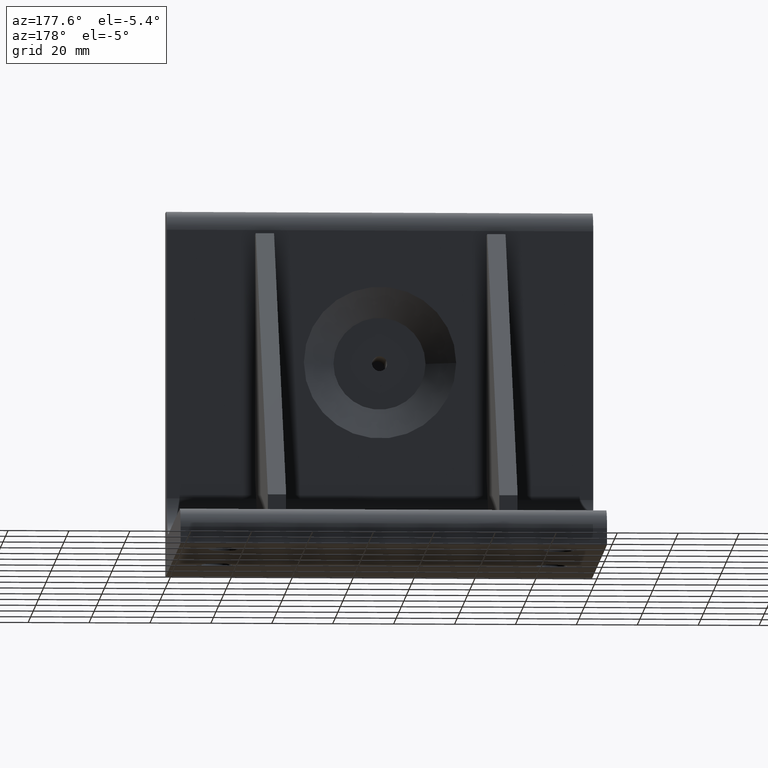
[diagram: clean part render]
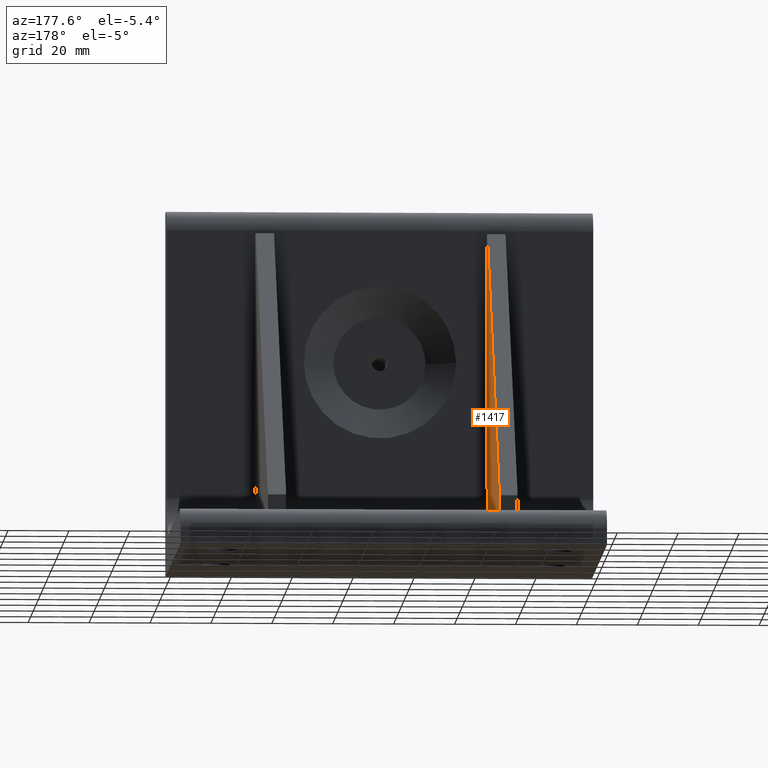
[diagram: same view with one face highlighted and labeled with its STEP entity id]
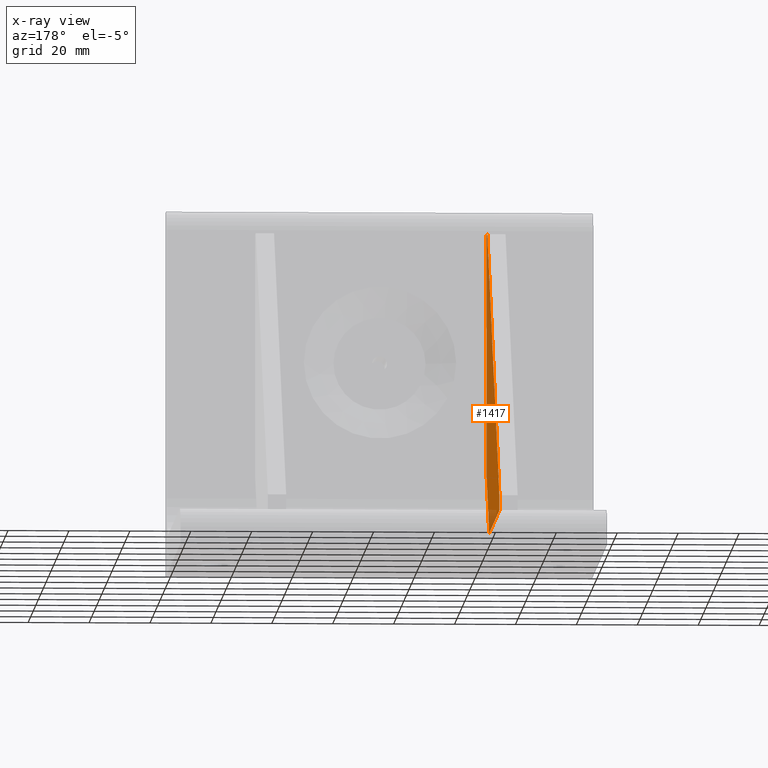
[diagram: x-ray of the same camera — body ghosted, the highlighted face saturated]
A machine part, auxiliary view. The second image highlights one B-rep face of the part: STEP entity #1417.
The next image is the same camera in x-ray: the body ghosted, the highlighted face saturated — about 6% of this face is hidden behind the body in this view.
In plain terms, the highlighted planar face has unit normal (-1, -0, 0).
Its self-contained STEP definition (entity closure, byte-faithful):
#194=FACE_OUTER_BOUND('',#297,.T.);
#297=EDGE_LOOP('',(#1220,#1221,#1222,#1223,#1224,#1225));
#399=LINE('',#2330,#529);
#422=LINE('',#2389,#552);
#423=LINE('',#2394,#553);
#424=LINE('',#2396,#554);
#425=LINE('',#2398,#555);
#426=LINE('',#2399,#556);
#529=VECTOR('',#1881,10.);
#552=VECTOR('',#1940,10.);
#553=VECTOR('',#1947,10.);
#554=VECTOR('',#1948,10.);
#555=VECTOR('',#1949,10.);
#556=VECTOR('',#1950,10.);
#677=VERTEX_POINT('',#2327);
#678=VERTEX_POINT('',#2329);
#693=VERTEX_POINT('',#2382);
#696=VERTEX_POINT('',#2387);
#698=VERTEX_POINT('',#2395);
#699=VERTEX_POINT('',#2397);
#847=EDGE_CURVE('',#677,#678,#399,.T.);
#877=EDGE_CURVE('',#696,#693,#422,.T.);
#879=EDGE_CURVE('',#696,#678,#423,.T.);
#880=EDGE_CURVE('',#677,#698,#424,.T.);
#881=EDGE_CURVE('',#698,#699,#425,.T.);
#882=EDGE_CURVE('',#699,#693,#426,.T.);
#1220=ORIENTED_EDGE('',*,*,#877,.F.);
#1221=ORIENTED_EDGE('',*,*,#879,.T.);
#1222=ORIENTED_EDGE('',*,*,#847,.F.);
#1223=ORIENTED_EDGE('',*,*,#880,.T.);
#1224=ORIENTED_EDGE('',*,*,#881,.T.);
#1225=ORIENTED_EDGE('',*,*,#882,.T.);
#1343=PLANE('',#1574);
#1417=ADVANCED_FACE('',(#194),#1343,.F.);
#1574=AXIS2_PLACEMENT_3D('',#2393,#1945,#1946);
#1881=DIRECTION('',(3.25452962490755E-46,-1.,-2.46716227694479E-16));
#1940=DIRECTION('',(8.16594296420187E-32,-2.87835598976892E-16,1.));
#1945=DIRECTION('center_axis',(-1.,-3.45599668927717E-46,8.16594296420187E-32));
#1946=DIRECTION('ref_axis',(8.16594296420187E-32,-4.69170109549033E-16,
1.));
#1947=DIRECTION('',(-5.77419364476974E-32,0.707106781186548,-0.707106781186547));
#1948=DIRECTION('',(8.16594296420187E-32,-4.69170109549033E-16,1.));
#1949=DIRECTION('',(5.77419364476974E-32,-0.707106781186548,0.707106781186547));
#1950=DIRECTION('',(1.62231219030736E-46,-1.,-2.24552694894928E-15));
#2327=CARTESIAN_POINT('',(35.,112.,12.));
#2329=CARTESIAN_POINT('',(35.,32.1471862576143,12.));
#2330=CARTESIAN_POINT('',(35.,31.0197260854705,12.));
#2382=CARTESIAN_POINT('',(35.,11.9999999999997,112.));
#2387=CARTESIAN_POINT('',(35.,12.,32.1471862576143));
#2389=CARTESIAN_POINT('',(35.,12.,85.0197260854706));
#2393=CARTESIAN_POINT('Origin',(35.,50.0394521709411,50.0394521709413));
#2394=CARTESIAN_POINT('',(35.,12.,32.1471862576143));
#2395=CARTESIAN_POINT('',(35.,112.,17.));
#2396=CARTESIAN_POINT('',(35.,112.,12.));
#2397=CARTESIAN_POINT('',(35.,16.9999999999997,112.));
#2398=CARTESIAN_POINT('',(35.,112.,17.));
#2399=CARTESIAN_POINT('',(35.,16.9999999999997,112.));